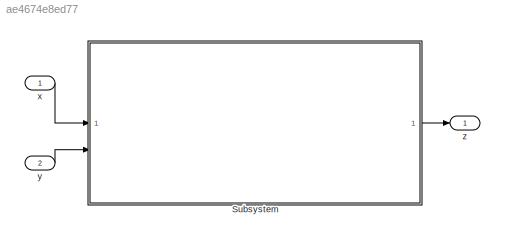
MODEL slx_ae4674e8ed77
KIND model
CONFIG AbsTol = auto
CONFIG EnableMultiTasking = off
CONFIG FixedStep = 0.1
CONFIG MaxStep = auto
CONFIG MinStep = auto
CONFIG RelTol = 1e-3
CONFIG SampleTimeConstraint = Unconstrained
CONFIG SolverName = ode1
CONFIG StartTime = 0.0
CONFIG StopTime = inf
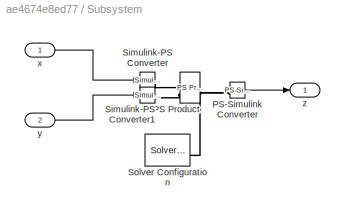
BLOCK [SubSystem] Subsystem
BLOCK [Reference] Subsystem/PS Product  REF=fl_lib/Physical Signals/Functions/PS Product
  SourceBlock = fl_lib/Physical Signals/Functions/PS Product
  SourceType = PS Product
BLOCK [Reference] Subsystem/PS-Simulink Converter  REF=nesl_utility/PS-Simulink
Converter
  SourceBlock = nesl_utility/PS-Simulink\nConverter
  SourceType = PS-Simulink\nConverter
BLOCK [Reference] Subsystem/Simulink-PS Converter  REF=nesl_utility/Simulink-PS
Converter
  SourceBlock = nesl_utility/Simulink-PS\nConverter
  SourceType = Simulink-PS\nConverter
BLOCK [Reference] Subsystem/Simulink-PS Converter1  REF=nesl_utility/Simulink-PS
Converter
  SourceBlock = nesl_utility/Simulink-PS\nConverter
  SourceType = Simulink-PS\nConverter
BLOCK [Reference] Subsystem/Solver Configuration  REF=nesl_utility/Solver
Configuration
  SourceBlock = nesl_utility/Solver\nConfiguration
  SourceType = Solver\nConfiguration
BLOCK [Inport] Subsystem/x
BLOCK [Inport] Subsystem/y
  Port = 2
BLOCK [Outport] Subsystem/z
BLOCK [Inport] x
BLOCK [Inport] y
  Port = 2
BLOCK [Outport] z
LINE Subsystem/PS-Simulink Converter:1 -> Subsystem/z:1
LINE Subsystem/x:1 -> Subsystem/Simulink-PS Converter:1
LINE Subsystem/y:1 -> Subsystem/Simulink-PS Converter1:1
LINE Subsystem:1 -> z:1
LINE x:1 -> Subsystem:1
LINE y:1 -> Subsystem:2
PLINE Subsystem/PS Product:LConn1 -- Subsystem/Simulink-PS Converter:RConn1
PLINE Subsystem/PS Product:LConn2 -- Subsystem/Simulink-PS Converter1:RConn1
PNET net1: Subsystem/PS Product:RConn1 -- Subsystem/PS-Simulink Converter:LConn1 -- Subsystem/Solver Configuration:RConn1
note: PNET lines group multi-terminal physical nets as a canonical sorted terminal list (undirected conserving connections); 2-terminal nets keep the pairwise PLINE form
